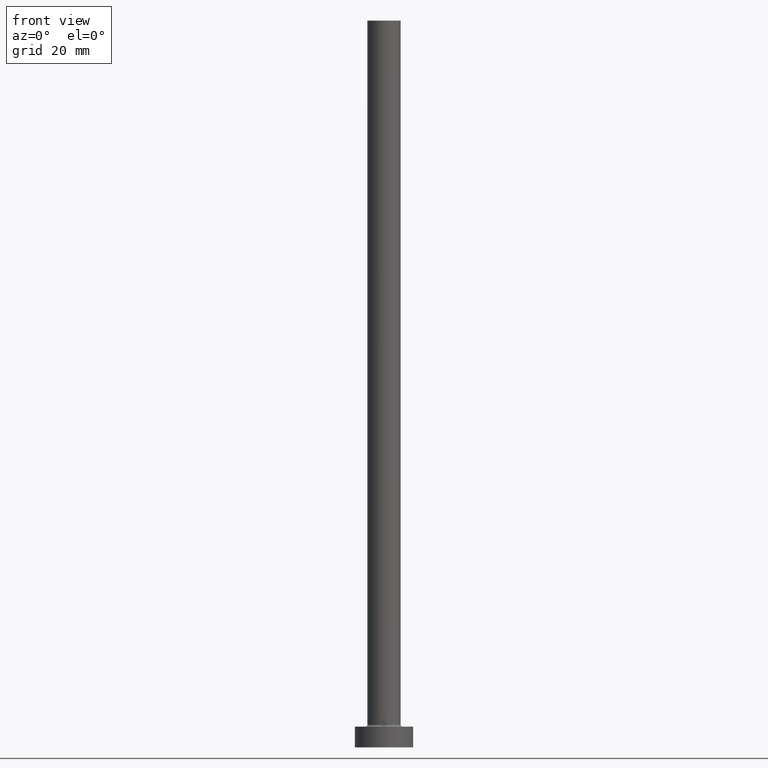
[diagram: clean part render]
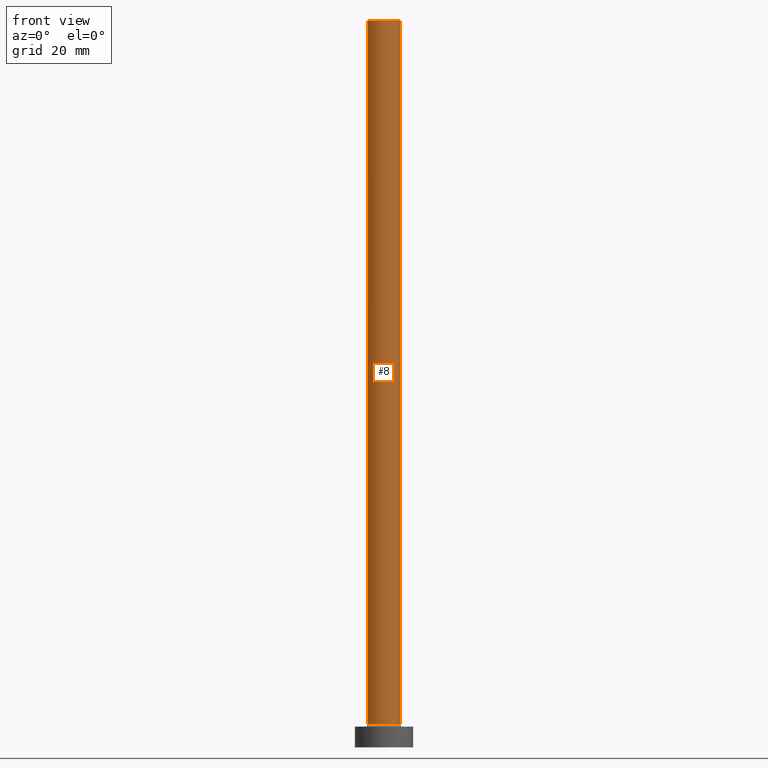
[diagram: same view with one face highlighted and labeled with its STEP entity id]
A machine part, front view. The second image highlights one B-rep face of the part: STEP entity #8.
In plain terms, the highlighted cylindrical surface (edge-blend (fillet) strip) has radius 4 mm, axis along (-0, -0, -1).
Its self-contained STEP definition (entity closure, byte-faithful):
#2 = AXIS2_PLACEMENT_3D ( 'NONE', #47, #438, #179 ) ;
#4 = CARTESIAN_POINT ( 'NONE',  ( 0.000000000000000000, 0.000000000000000000, 175.0000000000000284 ) ) ;
#8 = ADVANCED_FACE ( 'NONE', ( #166 ), #437, .T. ) ;
#47 = CARTESIAN_POINT ( 'NONE',  ( 0.000000000000000000, 0.000000000000000000, 5.500000000000005329 ) ) ;
#54 = DIRECTION ( 'NONE',  ( -0.000000000000000000, -0.000000000000000000, -1.000000000000000000 ) ) ;
#60 = AXIS2_PLACEMENT_3D ( 'NONE', #4, #216, #129 ) ;
#61 = CARTESIAN_POINT ( 'NONE',  ( 4.000000000000000000, 4.898587196589412829E-16, 175.0000000000000284 ) ) ;
#64 = ORIENTED_EDGE ( 'NONE', *, *, #305, .T. ) ;
#92 = DIRECTION ( 'NONE',  ( -0.000000000000000000, -0.000000000000000000, -1.000000000000000000 ) ) ;
#95 = ORIENTED_EDGE ( 'NONE', *, *, #359, .F. ) ;
#106 = CARTESIAN_POINT ( 'NONE',  ( 0.000000000000000000, 0.000000000000000000, 175.0000000000000284 ) ) ;
#114 = LINE ( 'NONE', #232, #115 ) ;
#115 = VECTOR ( 'NONE', #54, 1000.000000000000000 ) ;
#129 = DIRECTION ( 'NONE',  ( 1.000000000000000000, 0.000000000000000000, 0.000000000000000000 ) ) ;
#165 = CARTESIAN_POINT ( 'NONE',  ( 4.000000000000000000, 4.898587196589412829E-16, 175.0000000000000284 ) ) ;
#166 = FACE_OUTER_BOUND ( 'NONE', #225, .T. ) ;
#169 = CARTESIAN_POINT ( 'NONE',  ( -4.000000000000000000, 0.000000000000000000, 5.500000000000005329 ) ) ;
#179 = DIRECTION ( 'NONE',  ( 1.000000000000000000, 0.000000000000000000, 0.000000000000000000 ) ) ;
#181 = CARTESIAN_POINT ( 'NONE',  ( -4.000000000000000000, 0.000000000000000000, 175.0000000000000284 ) ) ;
#190 = DIRECTION ( 'NONE',  ( -0.000000000000000000, -0.000000000000000000, -1.000000000000000000 ) ) ;
#216 = DIRECTION ( 'NONE',  ( 0.000000000000000000, 0.000000000000000000, 1.000000000000000000 ) ) ;
#225 = EDGE_LOOP ( 'NONE', ( #368, #95, #356, #64 ) ) ;
#232 = CARTESIAN_POINT ( 'NONE',  ( -4.000000000000000000, 0.000000000000000000, 175.0000000000000284 ) ) ;
#234 = DIRECTION ( 'NONE',  ( -1.000000000000000000, 0.000000000000000000, 0.000000000000000000 ) ) ;
#241 = EDGE_CURVE ( 'NONE', #405, #301, #114, .T. ) ;
#248 = LINE ( 'NONE', #61, #417 ) ;
#272 = CARTESIAN_POINT ( 'NONE',  ( 4.000000000000000000, 4.898587196589412829E-16, 5.500000000000005329 ) ) ;
#296 = CIRCLE ( 'NONE', #2, 4.000000000000000000 ) ;
#301 = VERTEX_POINT ( 'NONE', #169 ) ;
#305 = EDGE_CURVE ( 'NONE', #301, #316, #296, .T. ) ;
#316 = VERTEX_POINT ( 'NONE', #272 ) ;
#355 = VERTEX_POINT ( 'NONE', #165 ) ;
#356 = ORIENTED_EDGE ( 'NONE', *, *, #241, .T. ) ;
#359 = EDGE_CURVE ( 'NONE', #405, #355, #371, .T. ) ;
#368 = ORIENTED_EDGE ( 'NONE', *, *, #398, .F. ) ;
#371 = CIRCLE ( 'NONE', #60, 4.000000000000000000 ) ;
#395 = AXIS2_PLACEMENT_3D ( 'NONE', #106, #190, #234 ) ;
#398 = EDGE_CURVE ( 'NONE', #355, #316, #248, .T. ) ;
#405 = VERTEX_POINT ( 'NONE', #181 ) ;
#417 = VECTOR ( 'NONE', #92, 1000.000000000000000 ) ;
#437 = CYLINDRICAL_SURFACE ( 'NONE', #395, 4.000000000000000000 ) ;
#438 = DIRECTION ( 'NONE',  ( 0.000000000000000000, 0.000000000000000000, 1.000000000000000000 ) ) ;